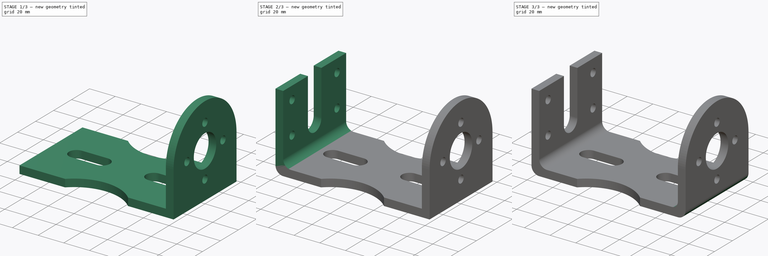
[diagram: build sequence overview — one tinted view per stage of 3, left to right]
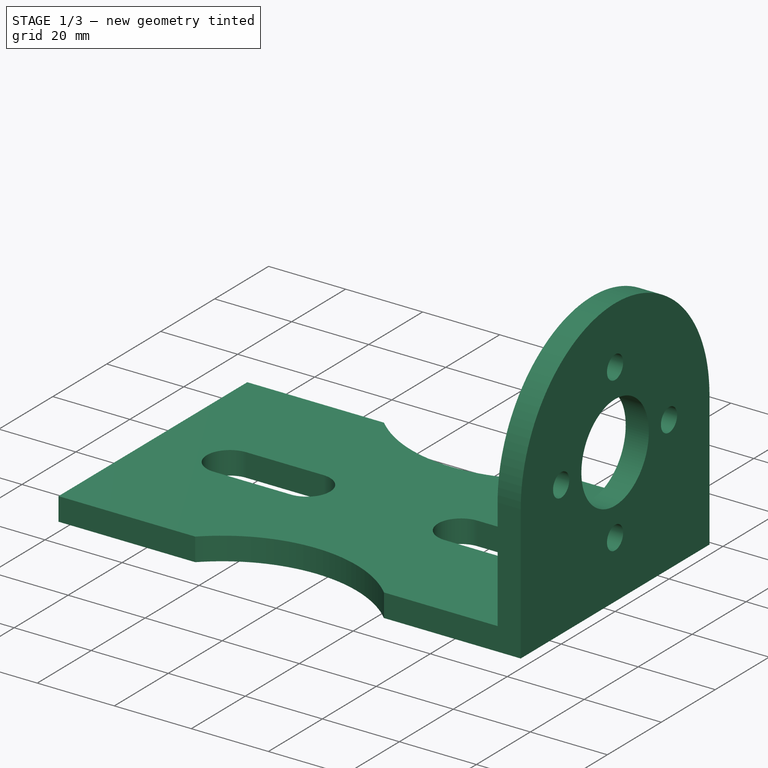
[diagram: stage 1 of 3 — iso view after this stage's code; geometry added in this stage tinted green]
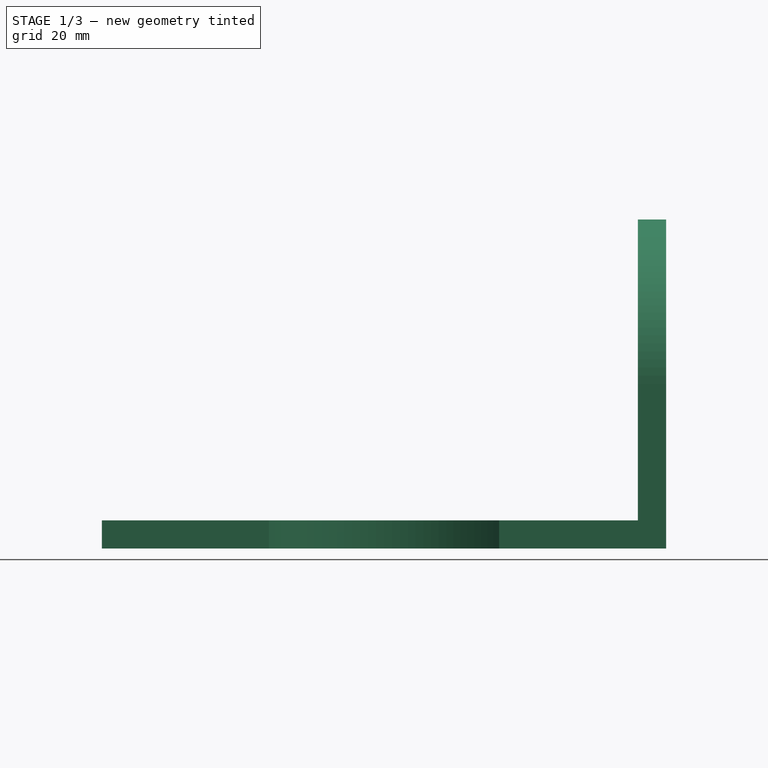
[diagram: stage 1 of 3 — front view after this stage's code; geometry added in this stage tinted green]
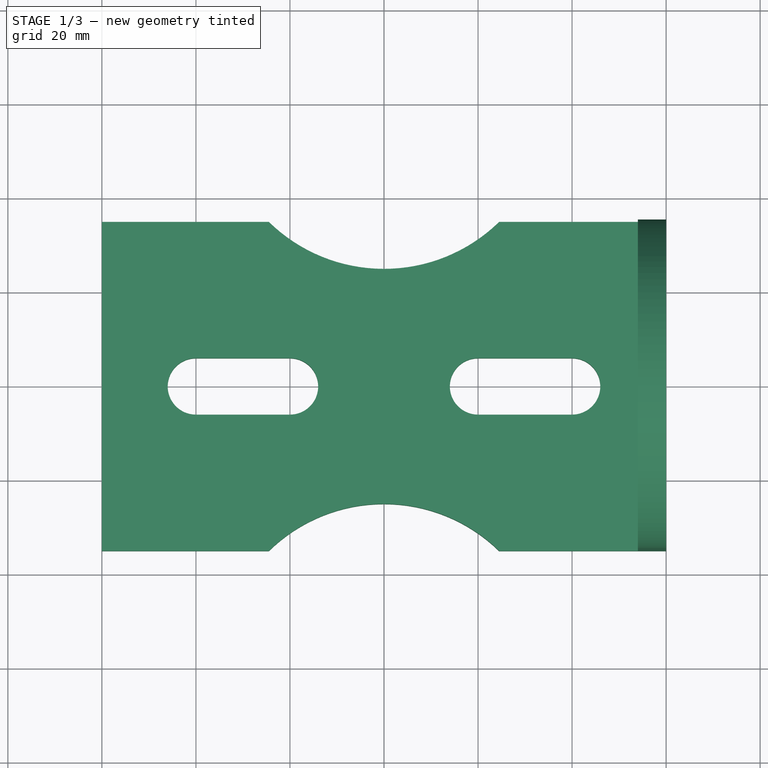
[diagram: stage 1 of 3 — top view after this stage's code; geometry added in this stage tinted green]
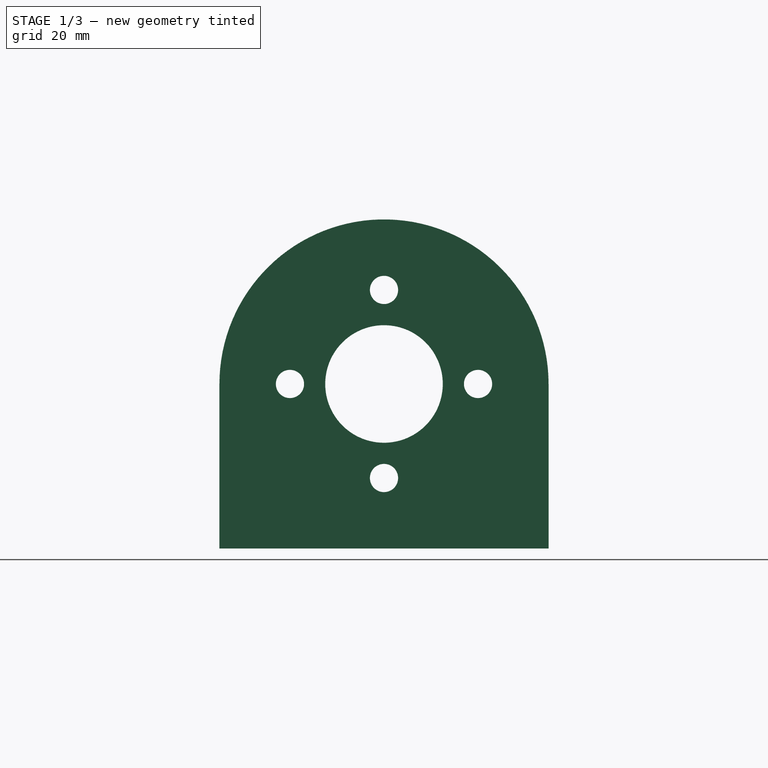
[diagram: stage 1 of 3 — right view after this stage's code; geometry added in this stage tinted green]
FCSTD DOCUMENT  (FreeCAD 0.16R)
Label: Ejer final 19
License: All rights reserved
LicenseURL: http://en.wikipedia.org/wiki/All_rights_reserved
objects: PartDesign::Fillet×4, Sketcher::SketchObject×3, PartDesign::Pad×3, Part::Feature×1
note: 14 computed .brp shape members not serialized (recipe doc carries the construction recipe); baked Part::Feature solids carry a one-line shape summary decoded from their .brp

FEATURE [Sketcher::SketchObject] Sketch
  sketch-geometry (18):
    g0: LineSegment StartX=-60 StartY=35 StartZ=0 EndX=-24.4949 EndY=35 EndZ=0
    g1: LineSegment StartX=60 StartY=35 StartZ=0 EndX=60 EndY=-35 EndZ=0
    g2: LineSegment StartX=60 StartY=-35 StartZ=0 EndX=24.4949 EndY=-35 EndZ=0
    g3: LineSegment StartX=-60 StartY=-35 StartZ=0 EndX=-60 EndY=35 EndZ=0
    g4: ArcOfCircle CenterX=-40 CenterY=0 CenterZ=0 NormalX=0 NormalY=0 NormalZ=1 Radius=6 StartAngle=1.5708 EndAngle=4.71239
    g5: ArcOfCircle CenterX=-20 CenterY=0 CenterZ=0 NormalX=0 NormalY=0 NormalZ=1 Radius=6 StartAngle=4.71239 EndAngle=7.85398
    g6: ArcOfCircle CenterX=20 CenterY=0 CenterZ=0 NormalX=0 NormalY=0 NormalZ=1 Radius=6 StartAngle=1.57079 EndAngle=4.71239
    g7: ArcOfCircle CenterX=40 CenterY=0 CenterZ=0 NormalX=0 NormalY=0 NormalZ=1 Radius=6 StartAngle=4.71239 EndAngle=7.85398
    g8: LineSegment StartX=-40 StartY=-6 StartZ=0 EndX=-20 EndY=-6 EndZ=0
    g9: LineSegment StartX=20 StartY=-6 StartZ=0 EndX=40 EndY=-6 EndZ=0
    g10: LineSegment StartX=20 StartY=6 StartZ=0 EndX=40 EndY=6 EndZ=0
    g11: LineSegment StartX=-40 StartY=6 StartZ=0 EndX=-20 EndY=6 EndZ=0
    g12: ArcOfCircle CenterX=0 CenterY=60 CenterZ=0 NormalX=0 NormalY=0 NormalZ=1 Radius=35 StartAngle=3.9372 EndAngle=5.48758
    g13: ArcOfCircle CenterX=0 CenterY=-60 CenterZ=0 NormalX=0 NormalY=0 NormalZ=1 Radius=35 StartAngle=0.795603 EndAngle=2.34599
    g14: LineSegment [constr] StartX=0 StartY=-35 StartZ=0 EndX=0 EndY=-25 EndZ=0
    g15: LineSegment [constr] StartX=0 StartY=35 StartZ=0 EndX=0 EndY=25 EndZ=0
    g16: LineSegment StartX=24.4949 StartY=35 StartZ=0 EndX=60 EndY=35 EndZ=0
    g17: LineSegment StartX=-24.4949 StartY=-35 StartZ=0 EndX=-60 EndY=-35 EndZ=0
  constraints (53):
    c: Coincident(g16,g1)
    c: Coincident(g1,g2)
    c: Coincident(g17,g3)
    c: Coincident(g3,g0)
    c: Horizontal(g0)
    c: Horizontal(g2)
    c: Vertical(g1)
    c: Vertical(g3)
    c: DistanceX(g17,g2) = 120
    c: DistanceY(g3,g3) = 70
    c: Symmetric(g16,g17,g-1)
    c: PointOnObject(g4,g-1)
    c: PointOnObject(g6,g-1)
    c: PointOnObject(g7,g-1)
    c: Radius(g4) = 6
    c: Equal(g4,g5)
    c: Equal(g4,g6)
    c: Equal(g4,g7)
    c: DistanceX(g4,g5) = 20
    c: DistanceX(g6,g7) = 20
    c: DistanceX(g-1,g6) = 20
    c: DistanceX(g5,g-1) = 20
    c: Horizontal(g8)
    c: Horizontal(g9)
    c: Horizontal(g11)
    c: Coincident(g7,g9)
    c: Coincident(g7,g10)
    c: Coincident(g6,g10)
    c: Coincident(g6,g9)
    c: Coincident(g5,g8)
    c: Coincident(g5,g11)
    c: Coincident(g4,g11)
    c: Coincident(g4,g8)
    c: Tangent(g8,g4)
    c: Tangent(g8,g5)
    c: Tangent(g11,g4)
    c: Horizontal(g10)
    c: Tangent(g9,g6)
    c: Tangent(g10,g7)
    c: PointOnObject(g13,g-2)
    c: PointOnObject(g12,g-2)
    c: Radius(g12) = 35
    c: Radius(g13) = 35
    c: Vertical(g15)
    c: Vertical(g14)
    c: PointOnObject(g15,g12)
    c: PointOnObject(g14,g13)
    c: Coincident(g16,g12)
    c: Tangent(g0,g16)
    c: Coincident(g0,g12)
    c: Coincident(g17,g13)
    c: Tangent(g2,g17)
    c: Coincident(g2,g13)
FEATURE [PartDesign::Pad] Pad
  Length = 6
  Length2 = 100
  Sketch = -> Sketch
  Type = 0
FEATURE [Sketcher::SketchObject] Sketch001
  ExternalGeometry = -> [Pad]
  Placement = pos=(60,0,0) rot=(0.57735,0.57735,0.57735;2.0944rad)
  Support = -> Pad [Face4]
  sketch-geometry (11):
    g0: ArcOfCircle CenterX=0 CenterY=35 CenterZ=0 NormalX=0 NormalY=0 NormalZ=1 Radius=35 StartAngle=-3.02e-10 EndAngle=3.14159
    g1: Circle [constr] CenterX=0 CenterY=35 CenterZ=0 NormalX=0 NormalY=0 NormalZ=1 Radius=20
    g2: Circle CenterX=0 CenterY=35 CenterZ=0 NormalX=0 NormalY=0 NormalZ=1 Radius=12.5
    g3: LineSegment StartX=-35 StartY=35 StartZ=0 EndX=-35 EndY=0 EndZ=0
    g4: LineSegment StartX=-35 StartY=0 StartZ=0 EndX=35 EndY=0 EndZ=0
    g5: LineSegment StartX=35 StartY=0 StartZ=0 EndX=35 EndY=35 EndZ=0
    g6: Circle CenterX=0 CenterY=55 CenterZ=0 NormalX=0 NormalY=0 NormalZ=1 Radius=3
    g7: Circle CenterX=0 CenterY=15 CenterZ=0 NormalX=0 NormalY=0 NormalZ=1 Radius=3
    g8: Circle CenterX=-20 CenterY=35 CenterZ=0 NormalX=0 NormalY=0 NormalZ=1 Radius=3
    g9: Circle CenterX=20 CenterY=35 CenterZ=0 NormalX=0 NormalY=0 NormalZ=1 Radius=3
    g10: LineSegment [constr] StartX=-31.5581 StartY=35 StartZ=0 EndX=37.2013 EndY=35 EndZ=0
  constraints (29):
    c: PointOnObject(g0,g-2)
    c: Coincident(g1,g0)
    c: Coincident(g2,g0)
    c: Radius(g0) = 35
    c: Radius(g1) = 20
    c: Radius(g2) = 12.5
    c: Coincident(g3,g-3)
    c: Coincident(g3,g4)
    c: Coincident(g4,g-4)
    c: Coincident(g4,g5)
    c: Coincident(g0,g5)
    c: Coincident(g0,g3)
    c: Tangent(g3,g0)
    c: Tangent(g5,g0)
    c: PointOnObject(g6,g1)
    c: PointOnObject(g7,g1)
    c: PointOnObject(g8,g1)
    c: PointOnObject(g9,g1)
    c: Radius(g9) = 3
    c: Equal(g9,g7)
    c: Equal(g9,g8)
    c: Equal(g9,g6)
    c: Horizontal(g10)
    c: PointOnObject(g0,g10)
    c: PointOnObject(g7,g-2)
    c: PointOnObject(g6,g-2)
    c: PointOnObject(g8,g10)
    c: PointOnObject(g9,g10)
    c: DistanceY(g3,g10) = 35
FEATURE [PartDesign::Pad] Pad001
  Length = 6
  Length2 = 100
  Reversed = true
  Sketch = -> Sketch001
  Type = 0
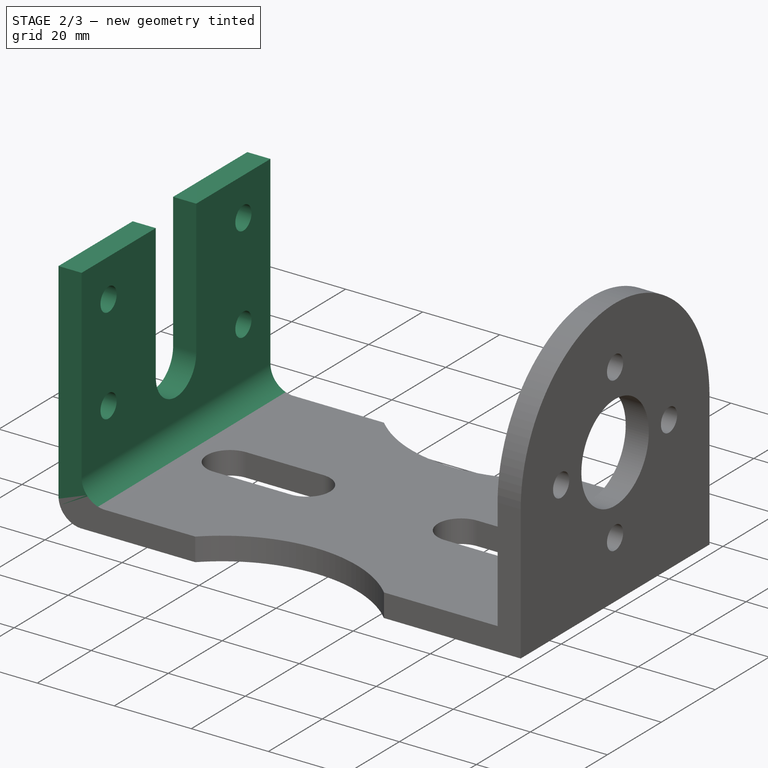
[diagram: stage 2 of 3 — iso view after this stage's code; geometry added in this stage tinted green]
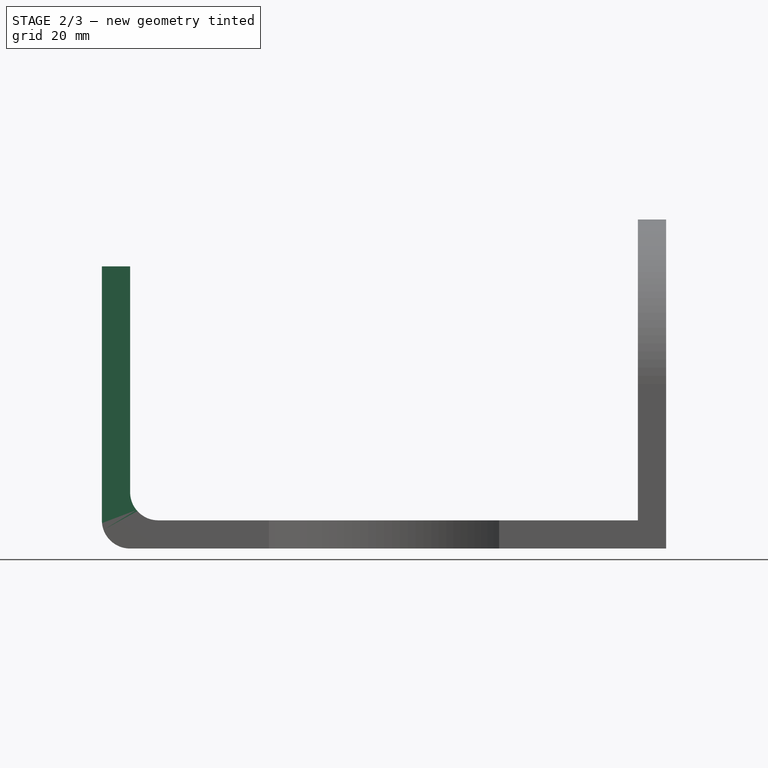
[diagram: stage 2 of 3 — front view after this stage's code; geometry added in this stage tinted green]
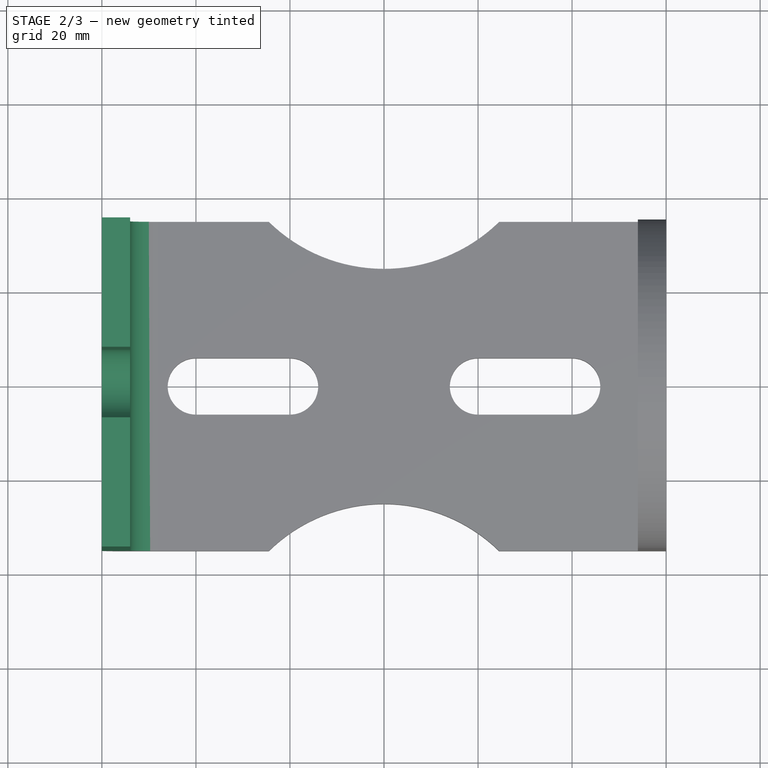
[diagram: stage 2 of 3 — top view after this stage's code; geometry added in this stage tinted green]
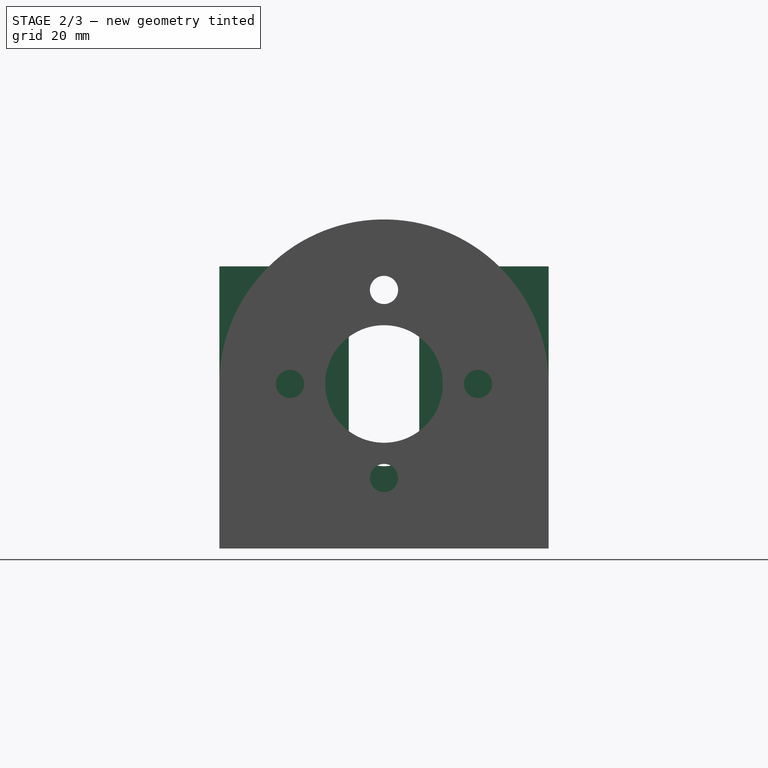
[diagram: stage 2 of 3 — right view after this stage's code; geometry added in this stage tinted green]
FEATURE [Sketcher::SketchObject] Sketch002
  ExternalGeometry = -> [Pad001]
  Placement = pos=(-60,0,0) rot=(0.57735,-0.57735,-0.57735;2.0944rad)
  Support = -> Pad001 [Face2]
  sketch-geometry (14):
    g0: LineSegment StartX=-35 StartY=0 StartZ=0 EndX=35 EndY=0 EndZ=0
    g1: LineSegment StartX=35 StartY=0 StartZ=0 EndX=35 EndY=60 EndZ=0
    g2: LineSegment StartX=35 StartY=60 StartZ=0 EndX=7.5 EndY=60 EndZ=0
    g3: LineSegment StartX=-35 StartY=60 StartZ=0 EndX=-35 EndY=0 EndZ=0
    g4: Circle CenterX=-25 CenterY=50 CenterZ=0 NormalX=0 NormalY=0 NormalZ=1 Radius=3
    g5: Circle CenterX=-25 CenterY=25 CenterZ=0 NormalX=0 NormalY=0 NormalZ=1 Radius=3
    g6: Circle CenterX=25 CenterY=50 CenterZ=0 NormalX=0 NormalY=0 NormalZ=1 Radius=3
    g7: Circle CenterX=25 CenterY=25 CenterZ=0 NormalX=0 NormalY=0 NormalZ=1 Radius=3
    g8: ArcOfCircle CenterX=0 CenterY=25 CenterZ=0 NormalX=0 NormalY=0 NormalZ=1 Radius=7.5 StartAngle=3.14159 EndAngle=6.28319
    g9: LineSegment [constr] StartX=-35 StartY=60 StartZ=0 EndX=-7.5 EndY=60 EndZ=0
    g10: LineSegment [constr] StartX=35 StartY=60 StartZ=0 EndX=7.5 EndY=60 EndZ=0
    g11: LineSegment StartX=-7.5 StartY=60 StartZ=0 EndX=-7.5 EndY=25 EndZ=0
    g12: LineSegment StartX=7.5 StartY=60 StartZ=0 EndX=7.5 EndY=25 EndZ=0
    g13: LineSegment StartX=-7.5 StartY=60 StartZ=0 EndX=-35 EndY=60 EndZ=0
  constraints (41):
    c: Coincident(g0,g1)
    c: Coincident(g1,g2)
    c: Coincident(g13,g3)
    c: Coincident(g3,g0)
    c: Horizontal(g0)
    c: Horizontal(g2)
    c: Vertical(g1)
    c: Vertical(g3)
    c: Coincident(g0,g-4)
    c: Coincident(g0,g-3)
    c: DistanceY(g3,g3) = 60
    c: Radius(g6) = 3
    c: Equal(g6,g7)
    c: Equal(g6,g5)
    c: Equal(g6,g4)
    c: DistanceY(g7,g6) = 25
    c: DistanceY(g5,g4) = 25
    c: DistanceX(g13,g4) = 10
    c: DistanceX(g0,g5) = 10
    c: DistanceX(g6,g1) = 10
    c: DistanceX(g7,g0) = 10
    c: DistanceY(g7,g1) = 35
    c: DistanceY(g5,g13) = 35
    c: PointOnObject(g8,g-2)
    c: DistanceY(g8,g13) = 35
    c: Coincident(g9,g13)
    c: Horizontal(g9)
    c: Coincident(g10,g1)
    c: PointOnObject(g10,g2)
    c: DistanceX(g13,g9) = 27.5
    c: DistanceX(g10,g1) = 27.5
    c: Coincident(g11,g9)
    c: Coincident(g12,g10)
    c: Vertical(g11)
    c: PointOnObject(g2,g12)
    c: PointOnObject(g13,g11)
    c: Tangent(g2,g13)
    c: Coincident(g8,g11)
    c: Coincident(g8,g12)
    c: Tangent(g8,g11)
    c: Tangent(g8,g12)
FEATURE [PartDesign::Pad] Pad002
  Length = 6
  Length2 = 100
  Reversed = true
  Sketch = -> Sketch002
  Type = 0
FEATURE [PartDesign::Fillet] Fillet
  Base = -> Pad002 [Edge15]
  Radius = 6
FEATURE [PartDesign::Fillet] Fillet001
  Base = -> Fillet [Edge79]
  Radius = 6
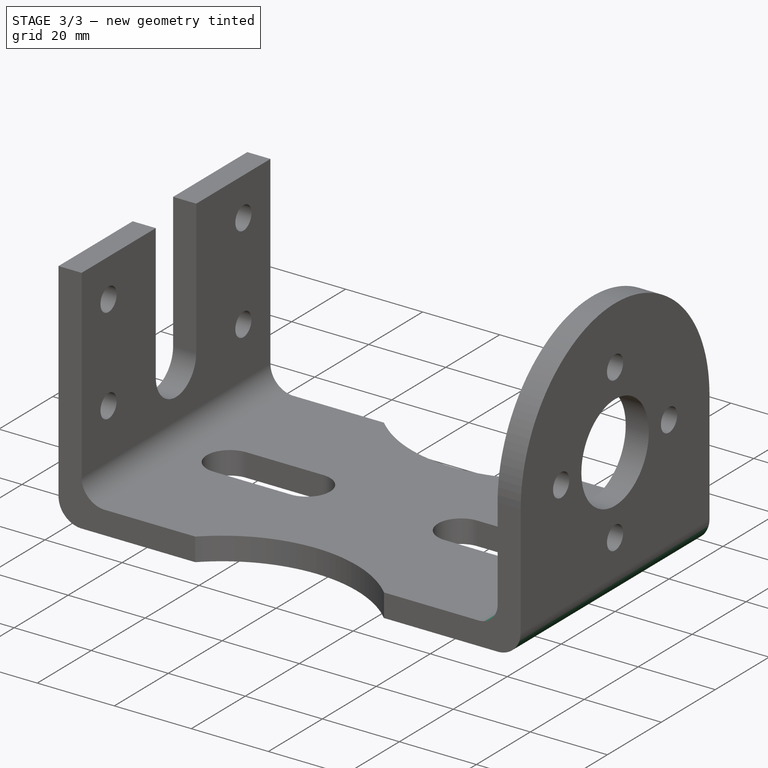
[diagram: stage 3 of 3 — iso view after this stage's code; geometry added in this stage tinted green]
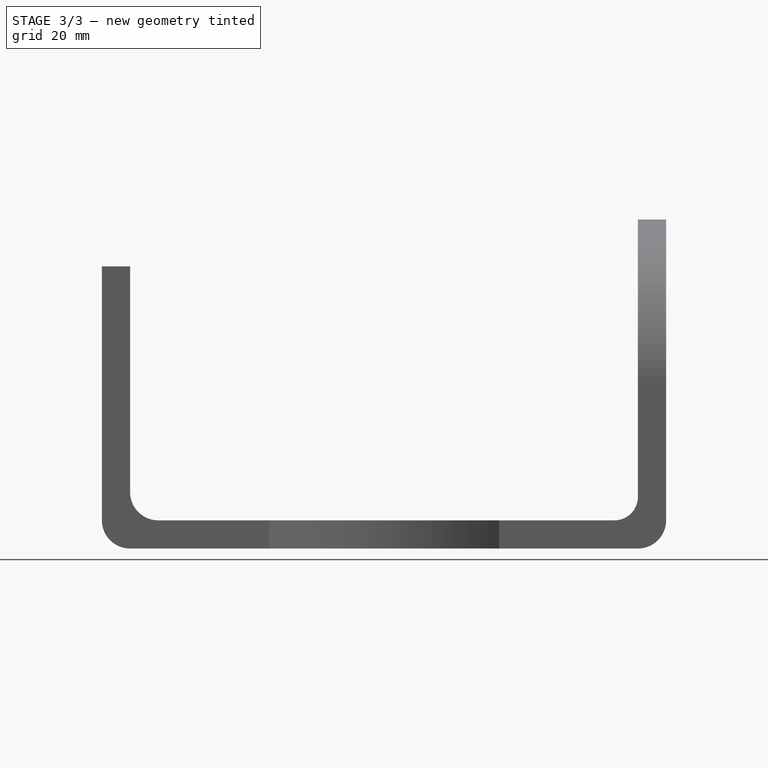
[diagram: stage 3 of 3 — front view after this stage's code; geometry added in this stage tinted green]
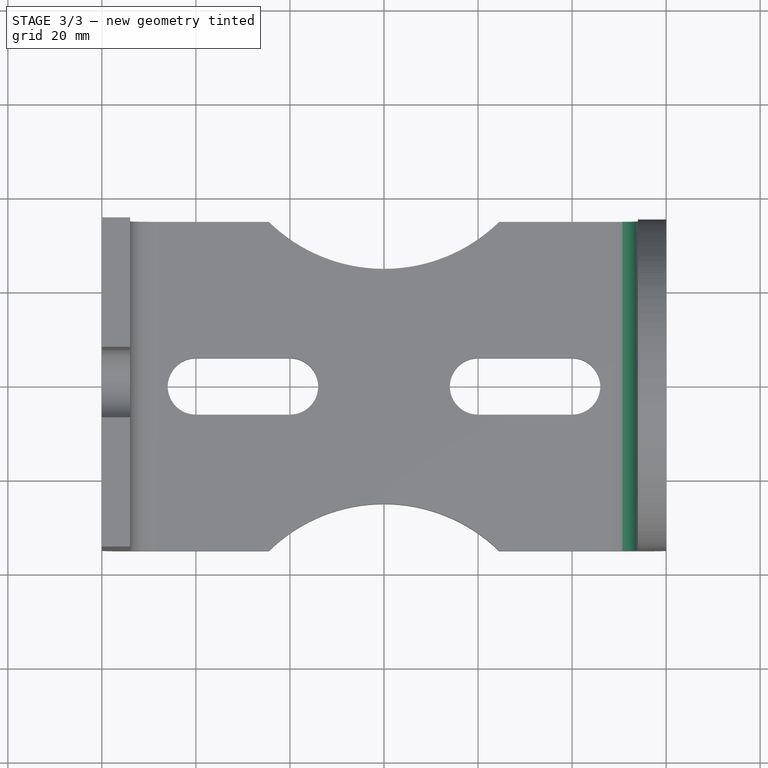
[diagram: stage 3 of 3 — top view after this stage's code; geometry added in this stage tinted green]
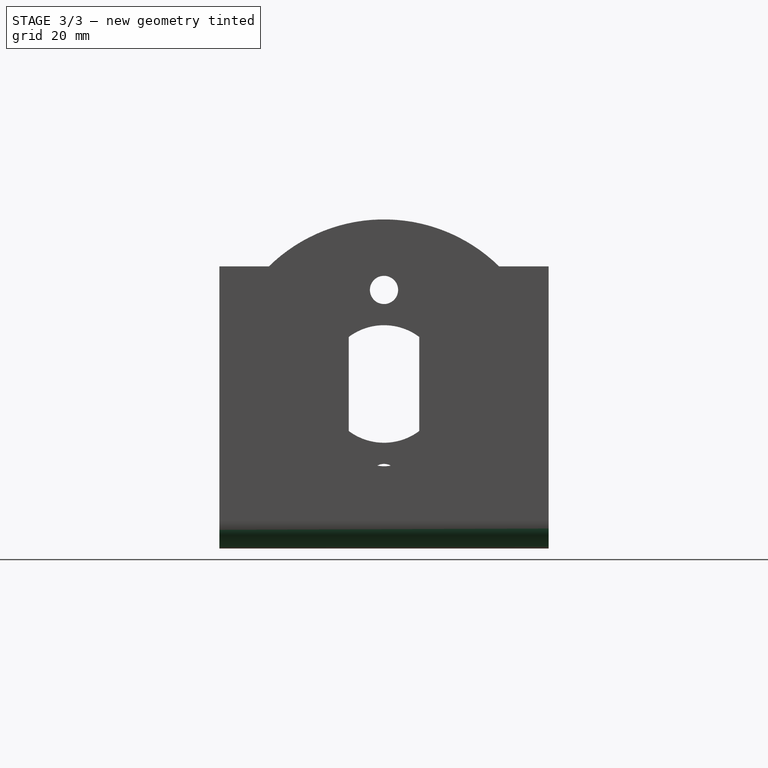
[diagram: stage 3 of 3 — right view after this stage's code; geometry added in this stage tinted green]
FEATURE [PartDesign::Fillet] Fillet002
  Base = -> Fillet001 [Edge28]
  Radius = 6
FEATURE [PartDesign::Fillet] Fillet003
  Base = -> Fillet002 [Edge70]
  Radius = 6
FEATURE [Part::Feature] Fillet003001  label="Fillet004"
  shape: bbox 120 x 70 x 70 mm, 39 faces (baked)
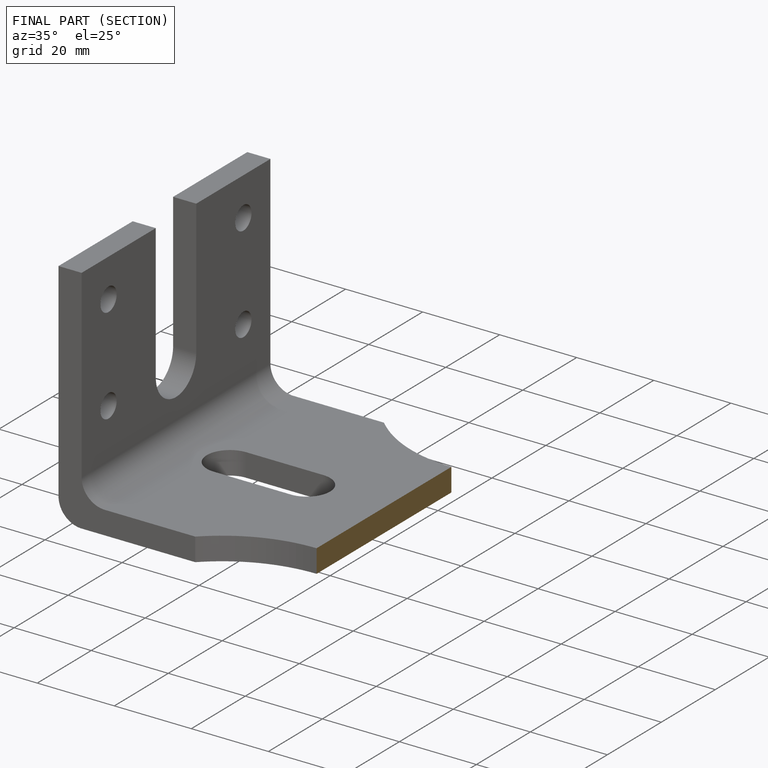
[diagram: finished part — half-section view (interior)]
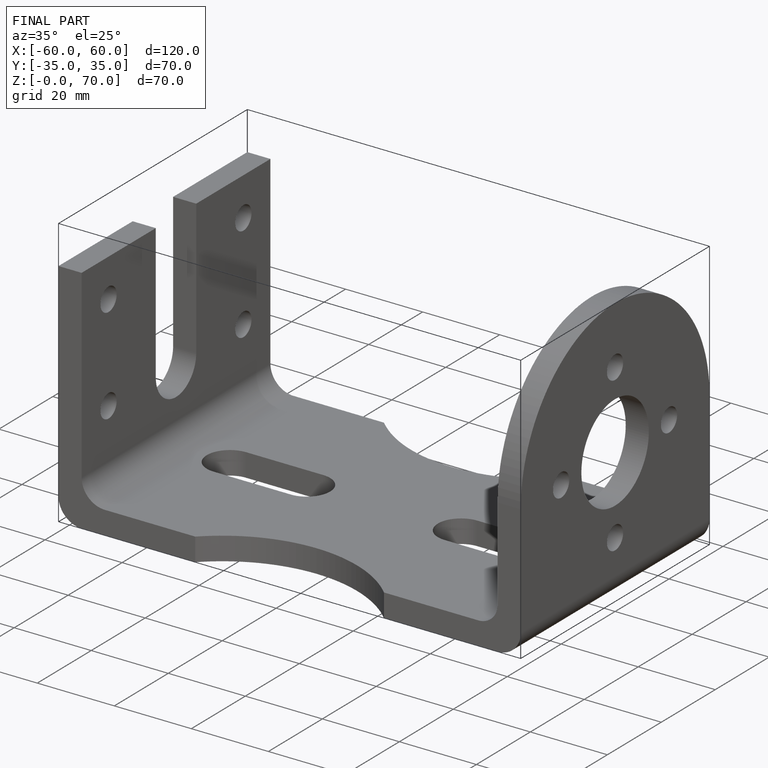
[diagram: finished part — iso view with bounding-box wireframe]
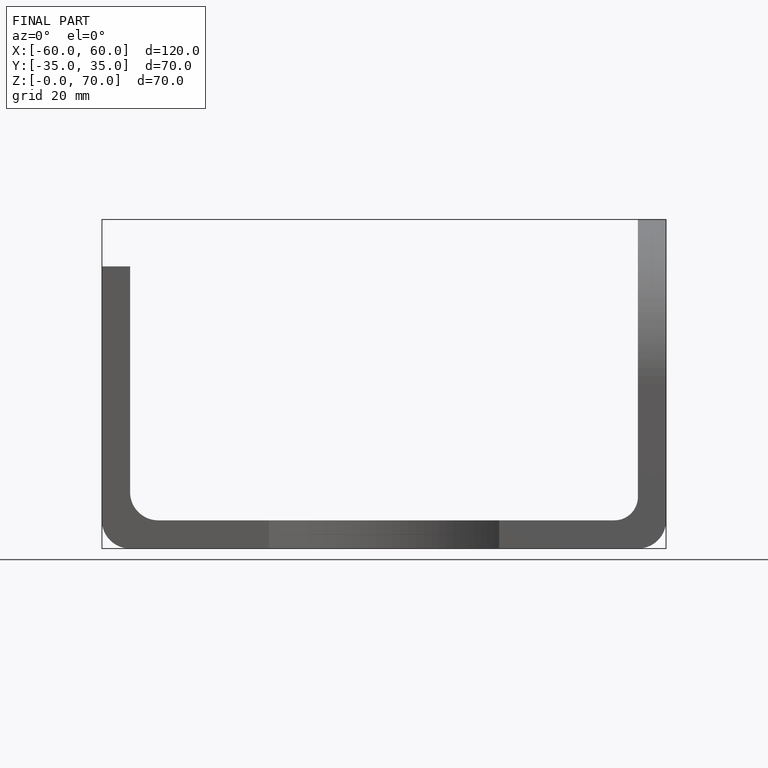
[diagram: finished part — front view with bounding-box wireframe]
